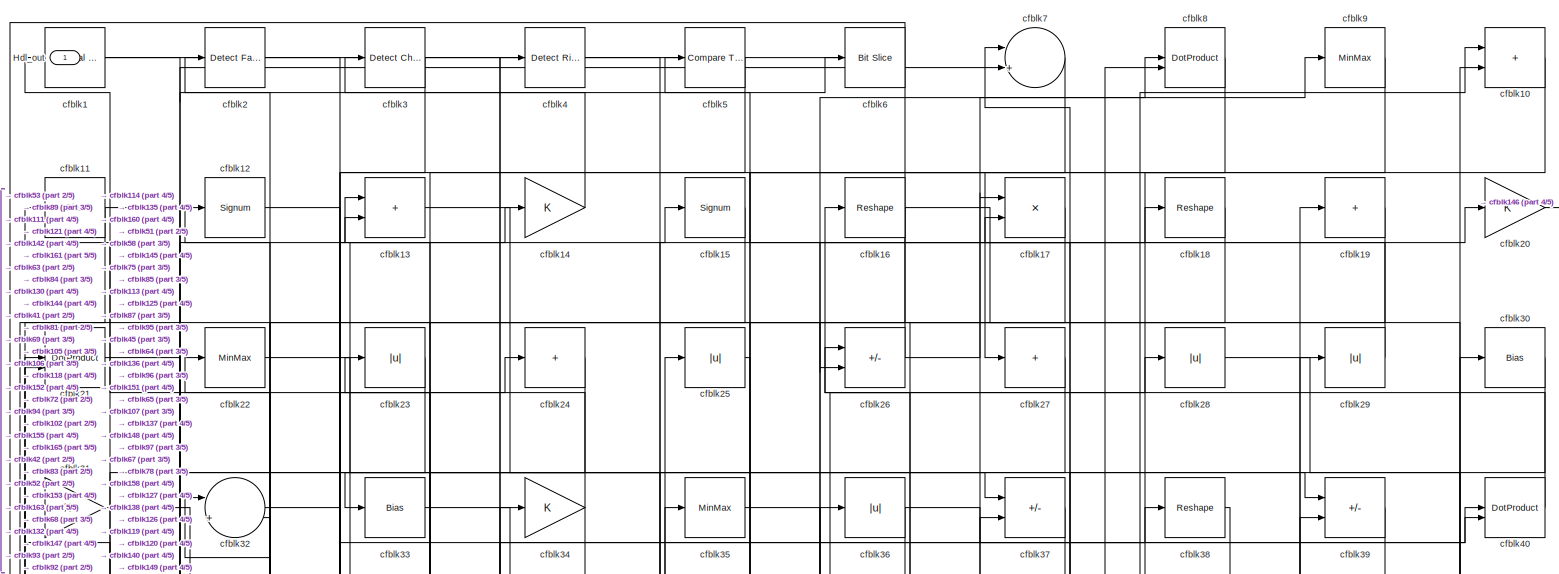
[diagram: root canvas - part 1/5, full width, top band]
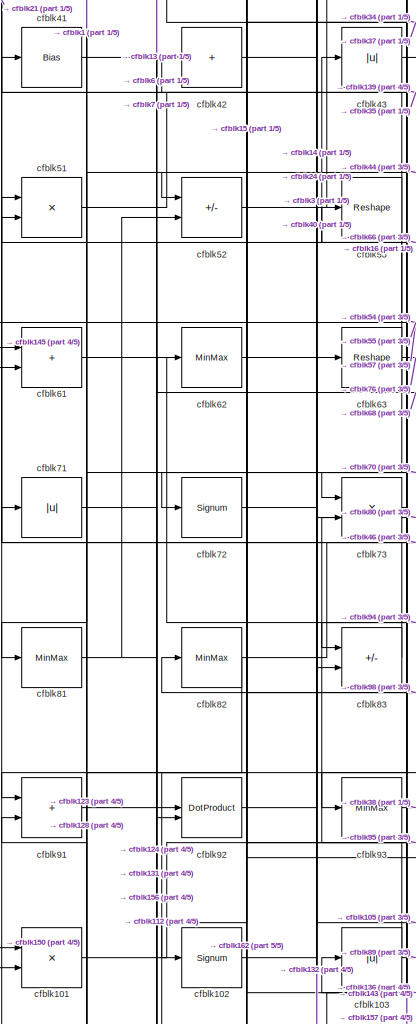
[diagram: root canvas - part 2/5, middle left region]
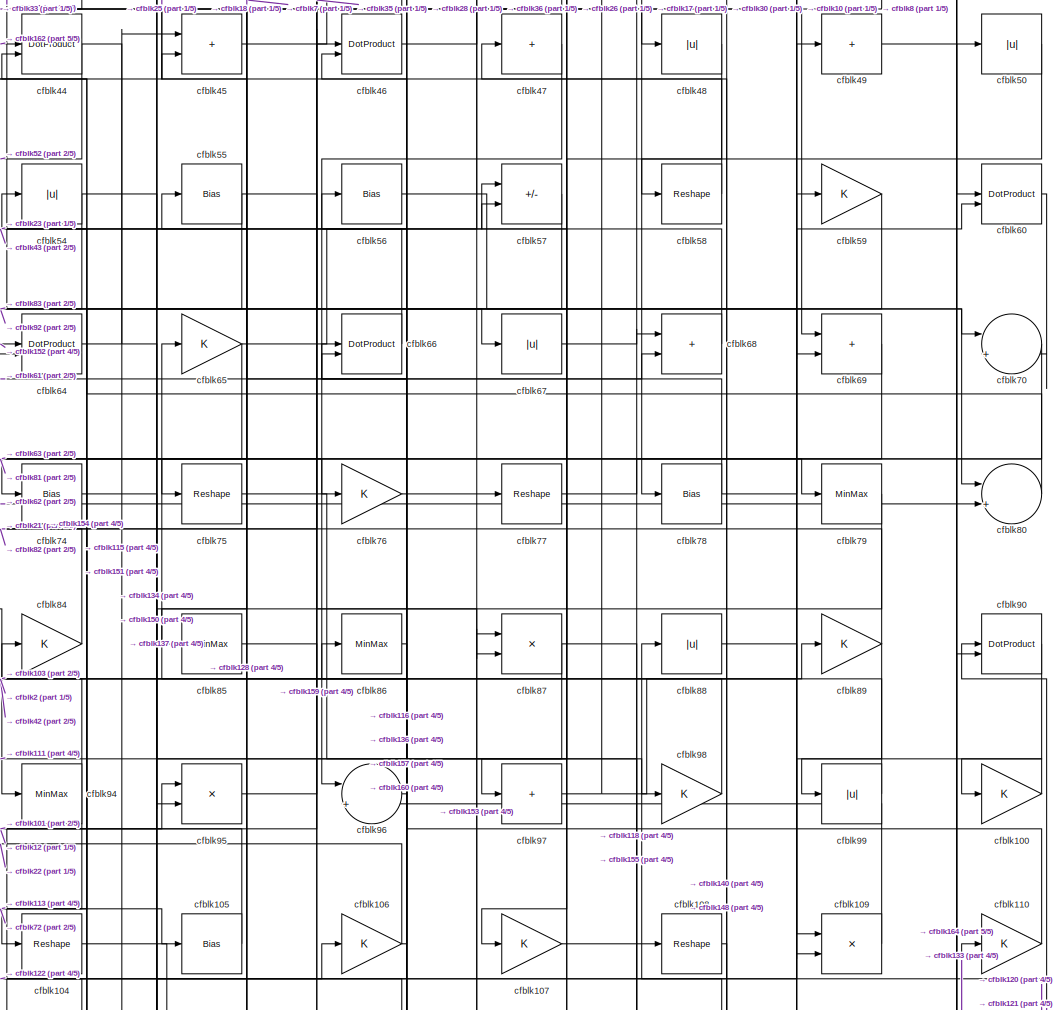
[diagram: root canvas - part 3/5, central region]
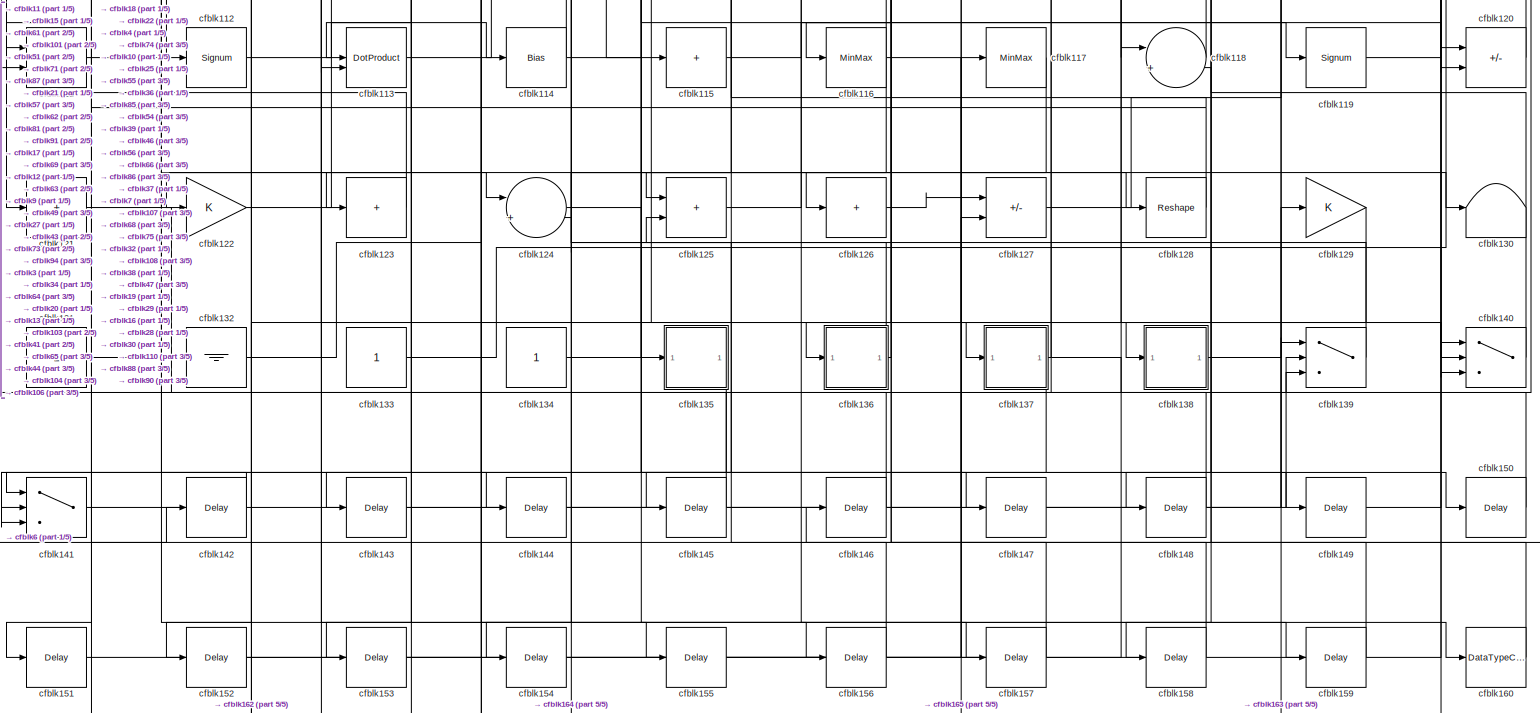
[diagram: root canvas - part 4/5, full width, bottom band]
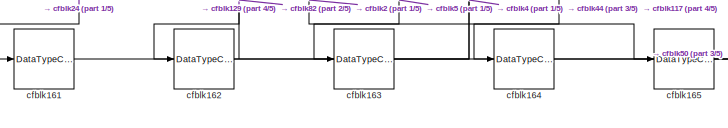
[diagram: root canvas - part 5/5, bottom left region]
MODEL slx_1cb9ccd4b587
KIND model
CONFIG AbsTol = auto
CONFIG EnableMultiTasking = off
CONFIG FixedStep = auto
CONFIG MaxStep = auto
CONFIG MinStep = auto
CONFIG RelTol = 1e-3
CONFIG SampleTimeConstraint = Unconstrained
CONFIG SolverName = VariableStepAuto
CONFIG StartTime = 0.0
CONFIG StopTime = 10.0
BLOCK [Outport] Hdl_out
  OutDataTypeStr = uint8
BLOCK [Reference] cfblk1  REF=hdlsllib/Logic and Bit
Operations/Interval Test
  SourceBlock = hdlsllib/Logic and Bit\nOperations/Interval Test
  SourceType = Interval Test
BLOCK [Sum] cfblk10
  IconShape = rectangular
  OutDataTypeStr = uint8
BLOCK [Gain] cfblk100
  OutDataTypeStr = uint8
BLOCK [Product] cfblk101
  Inputs = */
  OutDataTypeStr = uint8
  RndMeth = Zero
  SaturateOnIntegerOverflow = on
BLOCK [Signum] cfblk102
BLOCK [Abs] cfblk103
  OutDataTypeStr = uint8
  SaturateOnIntegerOverflow = off
BLOCK [Reshape] cfblk104
BLOCK [Bias] cfblk105
  Bias = 0.0
  SaturateOnIntegerOverflow = off
BLOCK [Gain] cfblk106
  OutDataTypeStr = uint8
BLOCK [Gain] cfblk107
  OutDataTypeStr = uint8
BLOCK [Reshape] cfblk108
BLOCK [Product] cfblk109
  Inputs = */
  OutDataTypeStr = uint8
  RndMeth = Zero
  SaturateOnIntegerOverflow = on
BLOCK [Bias] cfblk11
  Bias = 0.0
  SaturateOnIntegerOverflow = off
BLOCK [Gain] cfblk110
  OutDataTypeStr = uint8
BLOCK [Product] cfblk111
  Inputs = */
  OutDataTypeStr = uint8
  RndMeth = Zero
  SaturateOnIntegerOverflow = on
BLOCK [Signum] cfblk112
BLOCK [DotProduct] cfblk113
  OutDataTypeStr = uint8
BLOCK [Bias] cfblk114
  Bias = 0.0
  SaturateOnIntegerOverflow = off
BLOCK [Sum] cfblk115
  IconShape = rectangular
  Inputs = +
  OutDataTypeStr = uint8
BLOCK [MinMax] cfblk116
  OutDataTypeStr = uint8
BLOCK [MinMax] cfblk117
  OutDataTypeStr = uint8
BLOCK [Sum] cfblk118
  Inputs = |++
  OutDataTypeStr = uint8
BLOCK [Signum] cfblk119
BLOCK [Signum] cfblk12
BLOCK [Sum] cfblk120
  IconShape = rectangular
  Inputs = +-
  OutDataTypeStr = uint8
BLOCK [Sum] cfblk121
  IconShape = rectangular
  Inputs = +
  OutDataTypeStr = uint8
BLOCK [Gain] cfblk122
  OutDataTypeStr = uint8
BLOCK [Sum] cfblk123
  IconShape = rectangular
  Inputs = +
  OutDataTypeStr = uint8
BLOCK [Sum] cfblk124
  Inputs = |++
  OutDataTypeStr = uint8
BLOCK [Sum] cfblk125
  IconShape = rectangular
  OutDataTypeStr = uint8
BLOCK [Sum] cfblk126
  IconShape = rectangular
  Inputs = +
  OutDataTypeStr = uint8
BLOCK [Sum] cfblk127
  IconShape = rectangular
  Inputs = +-
  OutDataTypeStr = uint8
BLOCK [Reshape] cfblk128
BLOCK [Gain] cfblk129
  OutDataTypeStr = uint8
BLOCK [Sum] cfblk13
  IconShape = rectangular
  OutDataTypeStr = uint8
BLOCK [Terminator] cfblk130
BLOCK [Constant] cfblk131
  OutDataTypeStr = uint8
  SampleTime = -1
BLOCK [Ground] cfblk132
BLOCK [Constant] cfblk133
  OutDataTypeStr = uint8
  SampleTime = -1
BLOCK [Constant] cfblk134
  OutDataTypeStr = uint8
  SampleTime = -1
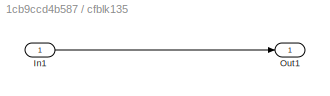
BLOCK [SubSystem] cfblk135
  LibrarySourceBlock = hdlsllib/Ports &\nSubsystems/Subsystem
BLOCK [Inport] cfblk135/In1
BLOCK [Outport] cfblk135/Out1
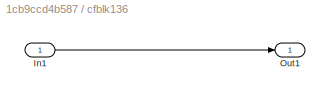
BLOCK [SubSystem] cfblk136
  LibrarySourceBlock = hdlsllib/Ports &\nSubsystems/Subsystem
BLOCK [Inport] cfblk136/In1
BLOCK [Outport] cfblk136/Out1
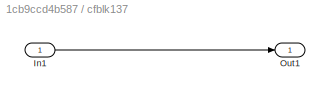
BLOCK [SubSystem] cfblk137
  LibrarySourceBlock = hdlsllib/Ports &\nSubsystems/Subsystem
BLOCK [Inport] cfblk137/In1
BLOCK [Outport] cfblk137/Out1
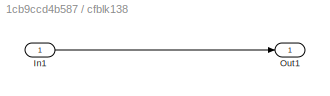
BLOCK [SubSystem] cfblk138
  LibrarySourceBlock = hdlsllib/Ports &\nSubsystems/Subsystem
BLOCK [Inport] cfblk138/In1
BLOCK [Outport] cfblk138/Out1
BLOCK [Switch] cfblk139
  InputSameDT = off
  OutDataTypeStr = uint8
  SaturateOnIntegerOverflow = off
BLOCK [Gain] cfblk14
  OutDataTypeStr = uint8
BLOCK [Switch] cfblk140
  InputSameDT = off
  OutDataTypeStr = uint8
  SaturateOnIntegerOverflow = off
BLOCK [Switch] cfblk141
  InputSameDT = off
  OutDataTypeStr = uint8
  SaturateOnIntegerOverflow = off
BLOCK [Delay] cfblk142
  InputPortMap = u0
  SampleTime = 1
BLOCK [Delay] cfblk143
  InputPortMap = u0
  SampleTime = 1
BLOCK [Delay] cfblk144
  InputPortMap = u0
  SampleTime = 1
BLOCK [Delay] cfblk145
  InputPortMap = u0
  SampleTime = 1
BLOCK [Delay] cfblk146
  InputPortMap = u0
  SampleTime = 1
BLOCK [Delay] cfblk147
  InputPortMap = u0
  SampleTime = 1
BLOCK [Delay] cfblk148
  InputPortMap = u0
  SampleTime = 1
BLOCK [Delay] cfblk149
  InputPortMap = u0
  SampleTime = 1
BLOCK [Signum] cfblk15
BLOCK [Delay] cfblk150
  InputPortMap = u0
  SampleTime = 1
BLOCK [Delay] cfblk151
  InputPortMap = u0
  SampleTime = 1
BLOCK [Delay] cfblk152
  InputPortMap = u0
  SampleTime = 1
BLOCK [Delay] cfblk153
  InputPortMap = u0
  SampleTime = 1
BLOCK [Delay] cfblk154
  InputPortMap = u0
  SampleTime = 1
BLOCK [Delay] cfblk155
  InputPortMap = u0
  SampleTime = 1
BLOCK [Delay] cfblk156
  InputPortMap = u0
  SampleTime = 1
BLOCK [Delay] cfblk157
  InputPortMap = u0
  SampleTime = 1
BLOCK [Delay] cfblk158
  InputPortMap = u0
  SampleTime = 1
BLOCK [Delay] cfblk159
  InputPortMap = u0
  SampleTime = 1
BLOCK [Reshape] cfblk16
BLOCK [DataTypeConversion] cfblk160
  OutDataTypeStr = uint8
  RndMeth = Floor
  SaturateOnIntegerOverflow = off
BLOCK [DataTypeConversion] cfblk161
  OutDataTypeStr = uint8
  RndMeth = Floor
  SaturateOnIntegerOverflow = off
BLOCK [DataTypeConversion] cfblk162
  OutDataTypeStr = uint8
  RndMeth = Floor
  SaturateOnIntegerOverflow = off
BLOCK [DataTypeConversion] cfblk163
  OutDataTypeStr = uint8
  RndMeth = Floor
  SaturateOnIntegerOverflow = off
BLOCK [DataTypeConversion] cfblk164
  OutDataTypeStr = uint8
  RndMeth = Floor
  SaturateOnIntegerOverflow = off
BLOCK [DataTypeConversion] cfblk165
  OutDataTypeStr = uint8
  RndMeth = Floor
  SaturateOnIntegerOverflow = off
BLOCK [Product] cfblk17
  Inputs = */
  OutDataTypeStr = uint8
  RndMeth = Zero
  SaturateOnIntegerOverflow = on
BLOCK [Reshape] cfblk18
BLOCK [Sum] cfblk19
  IconShape = rectangular
  Inputs = +
  OutDataTypeStr = uint8
BLOCK [Reference] cfblk2  REF=hdlsllib/Logic and Bit
Operations/Detect Fall
Nonpositive
  SourceBlock = hdlsllib/Logic and Bit\nOperations/Detect Fall\nNonpositive
  SourceType = Detect Fall Nonpositive
BLOCK [Gain] cfblk20
  OutDataTypeStr = uint8
BLOCK [DotProduct] cfblk21
  OutDataTypeStr = uint8
BLOCK [MinMax] cfblk22
  OutDataTypeStr = uint8
BLOCK [Abs] cfblk23
  OutDataTypeStr = uint8
  SaturateOnIntegerOverflow = off
BLOCK [Sum] cfblk24
  IconShape = rectangular
  Inputs = +
  OutDataTypeStr = uint8
BLOCK [Abs] cfblk25
  OutDataTypeStr = uint8
  SaturateOnIntegerOverflow = off
BLOCK [Sum] cfblk26
  IconShape = rectangular
  Inputs = +-
  OutDataTypeStr = uint8
BLOCK [Sum] cfblk27
  IconShape = rectangular
  Inputs = +
  OutDataTypeStr = uint8
BLOCK [Abs] cfblk28
  OutDataTypeStr = uint8
  SaturateOnIntegerOverflow = off
BLOCK [Abs] cfblk29
  OutDataTypeStr = uint8
  SaturateOnIntegerOverflow = off
BLOCK [Reference] cfblk3  REF=simulink/Logic and Bit
Operations/Detect
Change
  LibrarySourceBlock = hdlsllib/Logic and Bit\nOperations/Detect\nChange
  SourceBlock = simulink/Logic and Bit\nOperations/Detect\nChange
  SourceType = Detect Change
BLOCK [Bias] cfblk30
  Bias = 0.0
  SaturateOnIntegerOverflow = off
BLOCK [Gain] cfblk31
  OutDataTypeStr = uint8
BLOCK [Sum] cfblk32
  Inputs = |++
  OutDataTypeStr = uint8
BLOCK [Bias] cfblk33
  Bias = 0.0
  SaturateOnIntegerOverflow = off
BLOCK [Gain] cfblk34
  OutDataTypeStr = uint8
BLOCK [MinMax] cfblk35
  OutDataTypeStr = uint8
BLOCK [Abs] cfblk36
  OutDataTypeStr = uint8
  SaturateOnIntegerOverflow = off
BLOCK [Sum] cfblk37
  IconShape = rectangular
  Inputs = +-
  OutDataTypeStr = uint8
BLOCK [Reshape] cfblk38
BLOCK [Sum] cfblk39
  IconShape = rectangular
  Inputs = +-
  OutDataTypeStr = uint8
BLOCK [Reference] cfblk4  REF=hdlsllib/Logic and Bit
Operations/Detect Rise
Positive
  SourceBlock = hdlsllib/Logic and Bit\nOperations/Detect Rise\nPositive
  SourceType = Detect Rise Positive
BLOCK [DotProduct] cfblk40
  OutDataTypeStr = uint8
BLOCK [Bias] cfblk41
  Bias = 0.0
  SaturateOnIntegerOverflow = off
BLOCK [Sum] cfblk42
  IconShape = rectangular
  Inputs = +
  OutDataTypeStr = uint8
BLOCK [Abs] cfblk43
  OutDataTypeStr = uint8
  SaturateOnIntegerOverflow = off
BLOCK [DotProduct] cfblk44
  OutDataTypeStr = uint8
BLOCK [Sum] cfblk45
  IconShape = rectangular
  OutDataTypeStr = uint8
BLOCK [DotProduct] cfblk46
  OutDataTypeStr = uint8
BLOCK [Sum] cfblk47
  IconShape = rectangular
  Inputs = +
  OutDataTypeStr = uint8
BLOCK [Abs] cfblk48
  OutDataTypeStr = uint8
  SaturateOnIntegerOverflow = off
BLOCK [Sum] cfblk49
  IconShape = rectangular
  Inputs = +
  OutDataTypeStr = uint8
BLOCK [Reference] cfblk5  REF=hdlsllib/Logic and Bit
Operations/Compare
To Constant
  SourceBlock = hdlsllib/Logic and Bit\nOperations/Compare\nTo Constant
  SourceType = Compare To Constant
BLOCK [Abs] cfblk50
  OutDataTypeStr = uint8
  SaturateOnIntegerOverflow = off
BLOCK [Product] cfblk51
  Inputs = */
  OutDataTypeStr = uint8
  RndMeth = Zero
  SaturateOnIntegerOverflow = on
BLOCK [Sum] cfblk52
  IconShape = rectangular
  Inputs = +-
  OutDataTypeStr = uint8
BLOCK [Reshape] cfblk53
BLOCK [Abs] cfblk54
  OutDataTypeStr = uint8
  SaturateOnIntegerOverflow = off
BLOCK [Bias] cfblk55
  Bias = 0.0
  SaturateOnIntegerOverflow = off
BLOCK [Bias] cfblk56
  Bias = 0.0
  SaturateOnIntegerOverflow = off
BLOCK [Sum] cfblk57
  IconShape = rectangular
  Inputs = +-
  OutDataTypeStr = uint8
BLOCK [Reshape] cfblk58
BLOCK [Gain] cfblk59
  OutDataTypeStr = uint8
BLOCK [Reference] cfblk6  REF=hdlsllib/Logic and Bit
Operations/Bit Slice
  SourceBlock = hdlsllib/Logic and Bit\nOperations/Bit Slice
  SourceType = Bit Slice
BLOCK [DotProduct] cfblk60
  OutDataTypeStr = uint8
BLOCK [Sum] cfblk61
  IconShape = rectangular
  OutDataTypeStr = uint8
BLOCK [MinMax] cfblk62
  OutDataTypeStr = uint8
BLOCK [Reshape] cfblk63
BLOCK [DotProduct] cfblk64
  OutDataTypeStr = uint8
BLOCK [Gain] cfblk65
  OutDataTypeStr = uint8
BLOCK [DotProduct] cfblk66
  OutDataTypeStr = uint8
BLOCK [Abs] cfblk67
  OutDataTypeStr = uint8
  SaturateOnIntegerOverflow = off
BLOCK [Sum] cfblk68
  IconShape = rectangular
  OutDataTypeStr = uint8
BLOCK [Sum] cfblk69
  IconShape = rectangular
  OutDataTypeStr = uint8
BLOCK [Sum] cfblk7
  Inputs = |++
  OutDataTypeStr = uint8
BLOCK [Sum] cfblk70
  Inputs = |++
  OutDataTypeStr = uint8
BLOCK [Abs] cfblk71
  OutDataTypeStr = uint8
  SaturateOnIntegerOverflow = off
BLOCK [Signum] cfblk72
BLOCK [Product] cfblk73
  Inputs = */
  OutDataTypeStr = uint8
  RndMeth = Zero
  SaturateOnIntegerOverflow = on
BLOCK [Bias] cfblk74
  Bias = 0.0
  SaturateOnIntegerOverflow = off
BLOCK [Reshape] cfblk75
BLOCK [Gain] cfblk76
  OutDataTypeStr = uint8
BLOCK [Reshape] cfblk77
BLOCK [Bias] cfblk78
  Bias = 0.0
  SaturateOnIntegerOverflow = off
BLOCK [MinMax] cfblk79
  OutDataTypeStr = uint8
BLOCK [DotProduct] cfblk8
  OutDataTypeStr = uint8
BLOCK [Sum] cfblk80
  Inputs = |++
  OutDataTypeStr = uint8
BLOCK [MinMax] cfblk81
  OutDataTypeStr = uint8
BLOCK [MinMax] cfblk82
  OutDataTypeStr = uint8
BLOCK [Sum] cfblk83
  IconShape = rectangular
  Inputs = +-
  OutDataTypeStr = uint8
BLOCK [Gain] cfblk84
  OutDataTypeStr = uint8
BLOCK [MinMax] cfblk85
  OutDataTypeStr = uint8
BLOCK [MinMax] cfblk86
  OutDataTypeStr = uint8
BLOCK [Product] cfblk87
  Inputs = */
  OutDataTypeStr = uint8
  RndMeth = Zero
  SaturateOnIntegerOverflow = on
BLOCK [Abs] cfblk88
  OutDataTypeStr = uint8
  SaturateOnIntegerOverflow = off
BLOCK [Gain] cfblk89
  OutDataTypeStr = uint8
BLOCK [MinMax] cfblk9
  OutDataTypeStr = uint8
BLOCK [DotProduct] cfblk90
  OutDataTypeStr = uint8
BLOCK [Sum] cfblk91
  IconShape = rectangular
  OutDataTypeStr = uint8
BLOCK [DotProduct] cfblk92
  OutDataTypeStr = uint8
BLOCK [MinMax] cfblk93
  OutDataTypeStr = uint8
BLOCK [MinMax] cfblk94
  OutDataTypeStr = uint8
BLOCK [Product] cfblk95
  Inputs = */
  OutDataTypeStr = uint8
  RndMeth = Zero
  SaturateOnIntegerOverflow = on
BLOCK [Sum] cfblk96
  Inputs = |++
  OutDataTypeStr = uint8
BLOCK [Sum] cfblk97
  IconShape = rectangular
  Inputs = +
  OutDataTypeStr = uint8
BLOCK [Gain] cfblk98
  OutDataTypeStr = uint8
BLOCK [Abs] cfblk99
  OutDataTypeStr = uint8
  SaturateOnIntegerOverflow = off
LINE cfblk100:1 -> cfblk99:1
LINE cfblk101:1 -> cfblk95:1
LINE cfblk102:1 -> cfblk24:1
NET cfblk103:1 -> cfblk53:1, cfblk73:2, cfblk89:1
NET cfblk104:1 -> cfblk120:2, cfblk137:1
LINE cfblk105:1 -> cfblk12:1
NET cfblk106:1 -> cfblk22:1, cfblk66:1
LINE cfblk107:1 -> cfblk140:2
LINE cfblk108:1 -> cfblk148:1
LINE cfblk109:1 -> cfblk96:2
LINE cfblk10:1 -> cfblk125:1
LINE cfblk110:1 -> cfblk84:1
LINE cfblk111:1 -> cfblk57:1
LINE cfblk112:1 -> cfblk114:1
LINE cfblk113:1 -> cfblk20:1
NET cfblk114:1 -> cfblk13:1, cfblk18:1
LINE cfblk115:1 -> cfblk119:1
NET cfblk116:1 -> cfblk124:2, cfblk128:1, cfblk140:3, cfblk54:1
LINE cfblk117:1 -> cfblk164:1
LINE cfblk118:1 -> cfblk32:2
LINE cfblk119:1 -> cfblk30:1
NET cfblk11:1 -> cfblk111:2, cfblk130:1
LINE cfblk120:1 -> cfblk88:1
LINE cfblk121:1 -> cfblk90:1
LINE cfblk122:1 -> cfblk49:1
LINE cfblk123:1 -> cfblk71:1
LINE cfblk124:1 -> cfblk149:1
LINE cfblk125:1 -> cfblk36:1
LINE cfblk126:1 -> cfblk127:1
LINE cfblk127:1 -> cfblk29:1
NET cfblk128:1 -> cfblk55:1, cfblk91:2
LINE cfblk129:1 -> cfblk162:1
LINE cfblk12:1 -> cfblk155:1
LINE cfblk131:1 -> cfblk62:1
NET cfblk132:1 -> cfblk34:1, cfblk63:1
LINE cfblk133:1 -> cfblk110:1
LINE cfblk134:1 -> cfblk106:1
LINE cfblk135/In1:1 -> cfblk135/Out1:1
LINE cfblk135:1 -> cfblk141:2
LINE cfblk136/In1:1 -> cfblk136/Out1:1
NET cfblk136:1 -> cfblk103:1, cfblk86:1
LINE cfblk137/In1:1 -> cfblk137/Out1:1
NET cfblk137:1 -> cfblk139:3, cfblk141:3, cfblk17:2
LINE cfblk138/In1:1 -> cfblk138/Out1:1
LINE cfblk138:1 -> cfblk19:1
LINE cfblk139:1 -> cfblk41:1
LINE cfblk13:1 -> cfblk37:1
LINE cfblk140:1 -> cfblk47:1
LINE cfblk141:1 -> cfblk139:2
LINE cfblk142:1 -> cfblk141:1
LINE cfblk143:1 -> cfblk139:1
LINE cfblk144:1 -> cfblk127:2
LINE cfblk145:1 -> cfblk61:1
LINE cfblk146:1 -> cfblk32:1
LINE cfblk147:1 -> cfblk39:2
LINE cfblk148:1 -> cfblk7:1
LINE cfblk149:1 -> cfblk10:2
LINE cfblk14:1 -> cfblk3:1
LINE cfblk150:1 -> cfblk101:1
LINE cfblk151:1 -> cfblk37:2
LINE cfblk152:1 -> cfblk64:1
LINE cfblk153:1 -> cfblk87:1
LINE cfblk154:1 -> cfblk90:2
LINE cfblk155:1 -> cfblk68:1
LINE cfblk156:1 -> cfblk51:2
LINE cfblk157:1 -> cfblk46:2
LINE cfblk158:1 -> cfblk125:2
LINE cfblk159:1 -> cfblk118:2
NET cfblk15:1 -> cfblk121:1, cfblk72:1
NET cfblk160:1 -> cfblk56:1, cfblk66:2
LINE cfblk161:1 -> cfblk4:1
NET cfblk162:1 -> cfblk44:1, cfblk82:1
LINE cfblk163:1 -> cfblk129:1
LINE cfblk164:1 -> cfblk50:1
LINE cfblk165:1 -> cfblk117:1
NET cfblk16:1 -> cfblk120:1, cfblk93:1
NET cfblk17:1 -> cfblk152:1, cfblk26:2
LINE cfblk18:1 -> cfblk85:1
LINE cfblk19:1 -> cfblk136:1
LINE cfblk1:1 -> cfblk39:1
LINE cfblk20:1 -> cfblk146:1
LINE cfblk21:1 -> cfblk144:1
LINE cfblk22:1 -> cfblk135:1
LINE cfblk23:1 -> cfblk33:1
LINE cfblk24:1 -> cfblk161:1
LINE cfblk25:1 -> cfblk145:1
NET cfblk26:1 -> Hdl_out:1, cfblk9:1
LINE cfblk27:1 -> cfblk153:1
LINE cfblk28:1 -> cfblk140:1
LINE cfblk29:1 -> cfblk5:1
LINE cfblk2:1 -> cfblk165:1
LINE cfblk30:1 -> cfblk107:1
LINE cfblk31:1 -> cfblk69:1
LINE cfblk32:1 -> cfblk138:1
LINE cfblk33:1 -> cfblk67:1
NET cfblk34:1 -> cfblk11:1, cfblk92:1
LINE cfblk35:1 -> cfblk87:2
NET cfblk36:1 -> cfblk40:2, cfblk64:2
LINE cfblk37:1 -> cfblk102:1
LINE cfblk38:1 -> cfblk158:1
LINE cfblk39:1 -> cfblk126:1
NET cfblk3:1 -> cfblk147:1, cfblk83:2
LINE cfblk40:1 -> cfblk16:1
NET cfblk41:1 -> cfblk6:1, cfblk7:2
LINE cfblk42:1 -> cfblk14:1
NET cfblk43:1 -> cfblk123:1, cfblk157:1
NET cfblk44:1 -> cfblk115:1, cfblk151:1, cfblk52:1
LINE cfblk45:1 -> cfblk28:1
LINE cfblk46:1 -> cfblk48:1
LINE cfblk47:1 -> cfblk96:1
LINE cfblk48:1 -> cfblk97:1
LINE cfblk49:1 -> cfblk60:1
LINE cfblk4:1 -> cfblk160:1
LINE cfblk50:1 -> cfblk58:1
LINE cfblk51:1 -> cfblk35:1
LINE cfblk52:1 -> cfblk15:1
NET cfblk53:1 -> cfblk21:1, cfblk61:2
NET cfblk54:1 -> cfblk70:1, cfblk92:2
NET cfblk55:1 -> cfblk69:2, cfblk83:1
LINE cfblk56:1 -> cfblk80:1
LINE cfblk57:1 -> cfblk101:2
LINE cfblk58:1 -> cfblk25:1
LINE cfblk59:1 -> cfblk104:1
LINE cfblk5:1 -> cfblk163:1
LINE cfblk60:1 -> cfblk70:2
NET cfblk61:1 -> cfblk68:2, cfblk94:1
LINE cfblk62:1 -> cfblk80:2
NET cfblk63:1 -> cfblk1:1, cfblk73:1, cfblk76:1
NET cfblk64:1 -> cfblk45:1, cfblk98:1
NET cfblk65:1 -> cfblk154:1, cfblk17:1
LINE cfblk66:1 -> cfblk43:1
LINE cfblk67:1 -> cfblk10:1
LINE cfblk68:1 -> cfblk23:1
LINE cfblk69:1 -> cfblk122:1
LINE cfblk6:1 -> cfblk142:1
LINE cfblk70:1 -> cfblk81:1
LINE cfblk71:1 -> cfblk156:1
LINE cfblk72:1 -> cfblk105:1
LINE cfblk73:1 -> cfblk143:1
LINE cfblk74:1 -> cfblk150:1
LINE cfblk75:1 -> cfblk118:1
LINE cfblk76:1 -> cfblk77:1
LINE cfblk77:1 -> cfblk79:1
NET cfblk78:1 -> cfblk45:2, cfblk60:2
LINE cfblk79:1 -> cfblk95:2
LINE cfblk7:1 -> cfblk75:1
NET cfblk80:1 -> cfblk44:2, cfblk74:1
NET cfblk81:1 -> cfblk124:1, cfblk13:2, cfblk52:2
NET cfblk82:1 -> cfblk46:1, cfblk91:1
LINE cfblk83:1 -> cfblk51:1
LINE cfblk84:1 -> cfblk31:1
LINE cfblk85:1 -> cfblk159:1
LINE cfblk86:1 -> cfblk116:1
NET cfblk87:1 -> cfblk108:1, cfblk111:1, cfblk57:2
LINE cfblk88:1 -> cfblk109:1
NET cfblk89:1 -> cfblk109:2, cfblk21:2
LINE cfblk8:1 -> cfblk78:1
LINE cfblk90:1 -> cfblk100:1
LINE cfblk91:1 -> cfblk112:1
LINE cfblk92:1 -> cfblk40:1
LINE cfblk93:1 -> cfblk38:1
NET cfblk94:1 -> cfblk113:1, cfblk2:1
LINE cfblk95:1 -> cfblk8:1
LINE cfblk96:1 -> cfblk26:1
NET cfblk97:1 -> cfblk59:1, cfblk8:2
LINE cfblk98:1 -> cfblk42:1
LINE cfblk99:1 -> cfblk65:1
NET cfblk9:1 -> cfblk113:2, cfblk27:1
note: NET lines group one-source signal fan-out (src -> all destinations, sorted); 1:1 wires keep LINE
